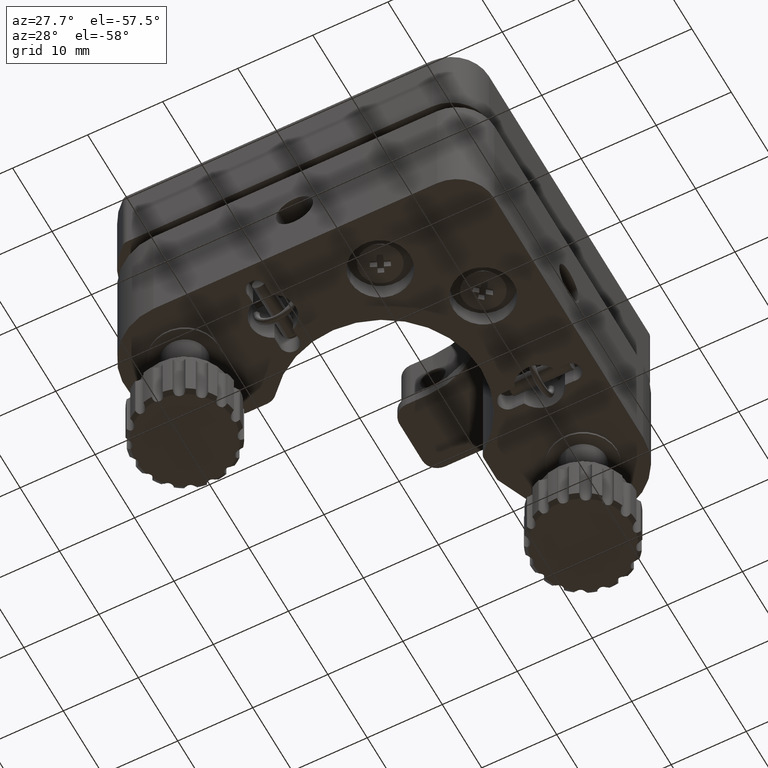
[diagram: clean part render]
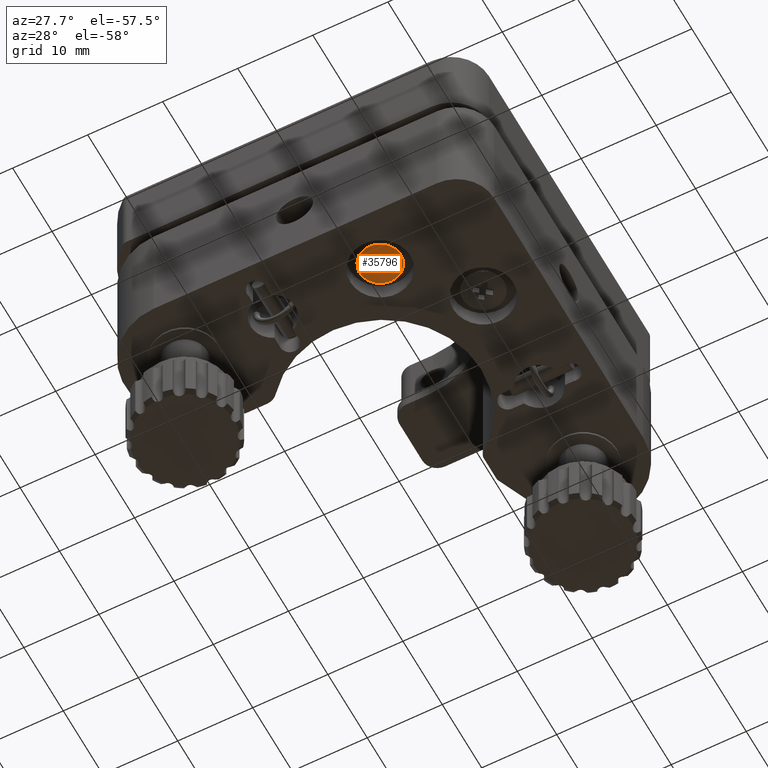
[diagram: same view with one face highlighted and labeled with its STEP entity id]
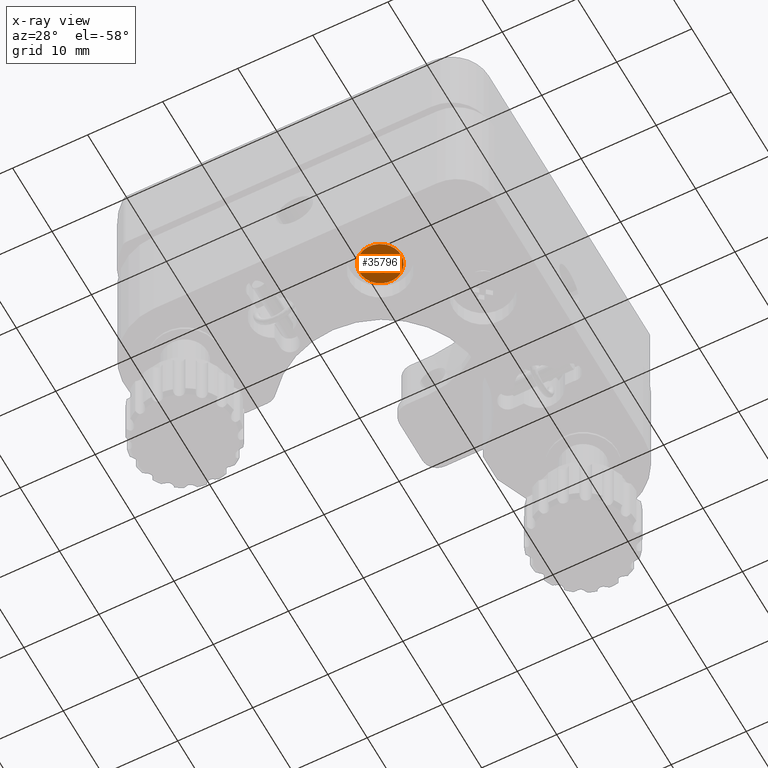
[diagram: x-ray of the same camera — body ghosted, the highlighted face saturated]
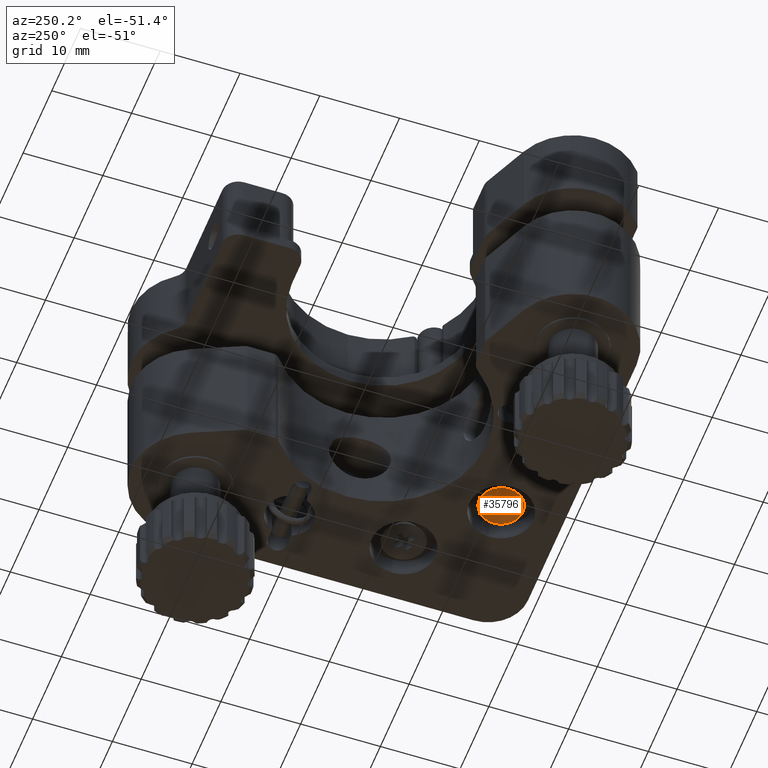
[diagram: same view with one face highlighted and labeled with its STEP entity id]
A machine part, auxiliary view. The second image highlights one B-rep face of the part: STEP entity #35796.
The next image is the same camera in x-ray: the body ghosted, the highlighted face saturated — about 0% of this face is hidden behind the body in this view.
A second angle (auxiliary view) of the same face is appended — the face is thin or edge-on in the first view.
In plain terms, the highlighted planar face has unit normal (0, -0, 1).
Its self-contained STEP definition (entity closure, byte-faithful):
#213 = ORIENTED_EDGE ( 'NONE', *, *, #33271, .F. ) ;
#486 = DIRECTION ( 'NONE',  ( 0.4088922155424708500, -0.9125826845107074500, 6.195440985631439300E-017 ) ) ;
#665 = CARTESIAN_POINT ( 'NONE',  ( 26.04785438749674500, 24.72207193769860500, 23.20054937011371300 ) ) ;
#794 = CARTESIAN_POINT ( 'NONE',  ( 26.19393658312055000, 23.41778669584323300, 23.20054937011371300 ) ) ;
#1278 = VECTOR ( 'NONE', #36260, 1000.000000000000000 ) ;
#1345 = LINE ( 'NONE', #6225, #8001 ) ;
#1957 = CARTESIAN_POINT ( 'NONE',  ( 27.17110805254194600, 24.29393503907560600, 23.20054937011371300 ) ) ;
#1973 = VERTEX_POINT ( 'NONE', #20902 ) ;
#2046 = ORIENTED_EDGE ( 'NONE', *, *, #21360, .F. ) ;
#2298 = VERTEX_POINT ( 'NONE', #6616 ) ;
#2343 = PLANE ( 'NONE',  #33539 ) ;
#3084 = VECTOR ( 'NONE', #30095, 1000.000000000000000 ) ;
#3140 = DIRECTION ( 'NONE',  ( -0.9125826845107075600, -0.4088922155424708500, -1.168020355707114700E-032 ) ) ;
#3316 = CARTESIAN_POINT ( 'NONE',  ( 27.49822182497592500, 23.56386889146703800, 23.20054937011371300 ) ) ;
#3650 = DIRECTION ( 'NONE',  ( -0.4088922155424702900, 0.9125826845107079000, 0.0000000000000000000 ) ) ;
#3797 = CARTESIAN_POINT ( 'NONE',  ( 25.99246039553325400, 22.88919673582196200, 23.20054937011371300 ) ) ;
#3998 = ORIENTED_EDGE ( 'NONE', *, *, #30980, .T. ) ;
#4042 = VERTEX_POINT ( 'NONE', #25086 ) ;
#4193 = CIRCLE ( 'NONE', #25424, 2.750000000000001800 ) ;
#4400 = ORIENTED_EDGE ( 'NONE', *, *, #25377, .F. ) ;
#5002 = VERTEX_POINT ( 'NONE', #18855 ) ;
#5023 = VERTEX_POINT ( 'NONE', #20932 ) ;
#5648 = ORIENTED_EDGE ( 'NONE', *, *, #25114, .F. ) ;
#6163 = ORIENTED_EDGE ( 'NONE', *, *, #13144, .F. ) ;
#6225 = CARTESIAN_POINT ( 'NONE',  ( 26.72252654314181800, 23.21631050825593700, 23.20054937011371300 ) ) ;
#6513 = ORIENTED_EDGE ( 'NONE', *, *, #28042, .T. ) ;
#6616 = CARTESIAN_POINT ( 'NONE',  ( 26.39541277070784600, 23.94637665586450500, 23.20054937011371300 ) ) ;
#6769 = DIRECTION ( 'NONE',  ( -5.546678239835239300E-032, 1.232595164407830900E-031, -1.000000000000000000 ) ) ;
#7058 = EDGE_CURVE ( 'NONE', #2298, #23317, #15325, .T. ) ;
#7590 = EDGE_LOOP ( 'NONE', ( #6163, #28268, #5648, #7925, #14174, #17766, #213, #31195, #2046, #4400, #13809, #30849 ) ) ;
#7925 = ORIENTED_EDGE ( 'NONE', *, *, #25477, .F. ) ;
#8001 = VECTOR ( 'NONE', #486, 1000.000000000000000 ) ;
#8154 = VERTEX_POINT ( 'NONE', #14685 ) ;
#8614 = VECTOR ( 'NONE', #3140, 999.9999999999998900 ) ;
#8644 = FACE_BOUND ( 'NONE', #7590, .T. ) ;
#9259 = CARTESIAN_POINT ( 'NONE',  ( 24.88965134126517500, 23.27170450021942800, 23.20054937011371300 ) ) ;
#9732 = LINE ( 'NONE', #29904, #31407 ) ;
#9748 = DIRECTION ( 'NONE',  ( 0.9125826845107074500, 0.4088922155424709000, 3.777720526333097900E-033 ) ) ;
#10710 = CARTESIAN_POINT ( 'NONE',  ( 25.31778823988817700, 24.39495816526462900, 23.20054937011371300 ) ) ;
#12252 = DIRECTION ( 'NONE',  ( 0.9125826845107074500, 0.4088922155424708500, 7.728962041702122200E-033 ) ) ;
#13144 = EDGE_CURVE ( 'NONE', #5023, #26673, #25449, .T. ) ;
#13178 = VERTEX_POINT ( 'NONE', #3797 ) ;
#13281 = EDGE_LOOP ( 'NONE', ( #3998, #6513 ) ) ;
#13614 = DIRECTION ( 'NONE',  ( -0.4088922155424708500, 0.9125826845107074500, -6.195440985631439300E-017 ) ) ;
#13809 = ORIENTED_EDGE ( 'NONE', *, *, #33606, .F. ) ;
#14174 = ORIENTED_EDGE ( 'NONE', *, *, #14317, .F. ) ;
#14317 = EDGE_CURVE ( 'NONE', #8154, #28067, #1345, .T. ) ;
#14685 = CARTESIAN_POINT ( 'NONE',  ( 26.72252654314181800, 23.21631050825593700, 23.20054937011371300 ) ) ;
#14901 = VERTEX_POINT ( 'NONE', #3316 ) ;
#14981 = EDGE_CURVE ( 'NONE', #26673, #5002, #19459, .T. ) ;
#15320 = FACE_OUTER_BOUND ( 'NONE', #13281, .T. ) ;
#15325 = LINE ( 'NONE', #1957, #30329 ) ;
#15682 = CARTESIAN_POINT ( 'NONE',  ( 27.17110805254194600, 24.29393503907560600, 23.20054937011371300 ) ) ;
#16601 = CARTESIAN_POINT ( 'NONE',  ( 25.99246039553325400, 22.88919673582196200, 23.20054937011371300 ) ) ;
#16888 = CARTESIAN_POINT ( 'NONE',  ( 26.19393658312055000, 23.41778669584323300, 23.20054937011371300 ) ) ;
#16921 = LINE ( 'NONE', #16601, #31906 ) ;
#17766 = ORIENTED_EDGE ( 'NONE', *, *, #22927, .F. ) ;
#17919 = VECTOR ( 'NONE', #20701, 1000.000000000000000 ) ;
#18855 = CARTESIAN_POINT ( 'NONE',  ( 25.66534662309927800, 23.61926288343053000, 23.20054937011371300 ) ) ;
#18959 = CIRCLE ( 'NONE', #29245, 2.750000000000001800 ) ;
#19459 = LINE ( 'NONE', #23555, #34411 ) ;
#19464 = DIRECTION ( 'NONE',  ( -0.4088922155424706800, 0.9125826845107075600, -6.195440985631438100E-017 ) ) ;
#19659 = CARTESIAN_POINT ( 'NONE',  ( 27.17110805254194600, 24.29393503907560600, 23.20054937011371300 ) ) ;
#19734 = DIRECTION ( 'NONE',  ( 0.4088922155424709000, -0.9125826845107074500, -1.355854680848613600E-031 ) ) ;
#20140 = CARTESIAN_POINT ( 'NONE',  ( 25.99246039553325400, 22.88919673582196200, 23.20054937011371300 ) ) ;
#20361 = CARTESIAN_POINT ( 'NONE',  ( 25.06948299037875600, 25.92738907824767800, 23.20054937011371300 ) ) ;
#20680 = DIRECTION ( 'NONE',  ( -5.546678239835239300E-032, 1.232595164407830900E-031, -1.000000000000000000 ) ) ;
#20701 = DIRECTION ( 'NONE',  ( -0.4088922155424709000, 0.9125826845107074500, -6.195440985631439300E-017 ) ) ;
#20902 = CARTESIAN_POINT ( 'NONE',  ( 26.34001877874435500, 22.11350145398785800, 23.20054937011371300 ) ) ;
#20908 = VERTEX_POINT ( 'NONE', #31347 ) ;
#20932 = CARTESIAN_POINT ( 'NONE',  ( 25.21676511369915400, 22.54163835261086000, 23.20054937011371300 ) ) ;
#21360 = EDGE_CURVE ( 'NONE', #4042, #2298, #25723, .T. ) ;
#21804 = VERTEX_POINT ( 'NONE', #20361 ) ;
#21838 = DIRECTION ( 'NONE',  ( 0.9125826845107075600, 0.4088922155424708500, 1.168020355707114700E-032 ) ) ;
#22927 = EDGE_CURVE ( 'NONE', #14901, #8154, #32081, .T. ) ;
#23050 = LINE ( 'NONE', #19659, #1278 ) ;
#23317 = VERTEX_POINT ( 'NONE', #15682 ) ;
#23538 = LINE ( 'NONE', #665, #30986 ) ;
#23555 = CARTESIAN_POINT ( 'NONE',  ( 25.66534662309927800, 23.61926288343053000, 23.20054937011371300 ) ) ;
#23627 = EDGE_CURVE ( 'NONE', #13178, #5023, #30299, .T. ) ;
#23782 = CARTESIAN_POINT ( 'NONE',  ( 26.19393658312055000, 23.41778669584323300, 23.20054937011371300 ) ) ;
#23911 = CARTESIAN_POINT ( 'NONE',  ( 27.07008492635292300, 22.44061522642183700, 23.20054937011371300 ) ) ;
#24654 = VECTOR ( 'NONE', #36427, 1000.000000000000000 ) ;
#24915 = CARTESIAN_POINT ( 'NONE',  ( 25.31778823988817700, 24.39495816526462900, 23.20054937011371300 ) ) ;
#25086 = CARTESIAN_POINT ( 'NONE',  ( 26.04785438749674500, 24.72207193769860500, 23.20054937011371300 ) ) ;
#25114 = EDGE_CURVE ( 'NONE', #1973, #13178, #16921, .T. ) ;
#25226 = VECTOR ( 'NONE', #13614, 1000.000000000000000 ) ;
#25377 = EDGE_CURVE ( 'NONE', #31265, #4042, #23538, .T. ) ;
#25424 = AXIS2_PLACEMENT_3D ( 'NONE', #794, #20680, #3650 ) ;
#25449 = LINE ( 'NONE', #9259, #17919 ) ;
#25477 = EDGE_CURVE ( 'NONE', #28067, #1973, #9732, .T. ) ;
#25723 = LINE ( 'NONE', #27152, #3084 ) ;
#26620 = DIRECTION ( 'NONE',  ( -0.4088922155424702900, 0.9125826845107079000, 0.0000000000000000000 ) ) ;
#26673 = VERTEX_POINT ( 'NONE', #27009 ) ;
#27009 = CARTESIAN_POINT ( 'NONE',  ( 24.88965134126517500, 23.27170450021942800, 23.20054937011371300 ) ) ;
#27098 = DIRECTION ( 'NONE',  ( -0.9125826845107074500, -0.4088922155424709000, -3.777720526333097900E-033 ) ) ;
#27152 = CARTESIAN_POINT ( 'NONE',  ( 26.04785438749674500, 24.72207193769860500, 23.20054937011371300 ) ) ;
#28042 = EDGE_CURVE ( 'NONE', #20908, #21804, #18959, .T. ) ;
#28067 = VERTEX_POINT ( 'NONE', #23911 ) ;
#28268 = ORIENTED_EDGE ( 'NONE', *, *, #23627, .F. ) ;
#29245 = AXIS2_PLACEMENT_3D ( 'NONE', #23782, #6769, #26620 ) ;
#29904 = CARTESIAN_POINT ( 'NONE',  ( 27.07008492635292300, 22.44061522642183700, 23.20054937011371300 ) ) ;
#30095 = DIRECTION ( 'NONE',  ( 0.4088922155424709600, -0.9125826845107074500, 6.195440985631439300E-017 ) ) ;
#30299 = LINE ( 'NONE', #20140, #8614 ) ;
#30329 = VECTOR ( 'NONE', #21838, 999.9999999999998900 ) ;
#30849 = ORIENTED_EDGE ( 'NONE', *, *, #14981, .F. ) ;
#30980 = EDGE_CURVE ( 'NONE', #21804, #20908, #4193, .T. ) ;
#30986 = VECTOR ( 'NONE', #9748, 1000.000000000000000 ) ;
#31195 = ORIENTED_EDGE ( 'NONE', *, *, #7058, .F. ) ;
#31265 = VERTEX_POINT ( 'NONE', #10710 ) ;
#31347 = CARTESIAN_POINT ( 'NONE',  ( 27.31839017586234400, 20.90818431343878800, 23.20054937011371300 ) ) ;
#31407 = VECTOR ( 'NONE', #27098, 1000.000000000000000 ) ;
#31906 = VECTOR ( 'NONE', #19464, 1000.000000000000100 ) ;
#32081 = LINE ( 'NONE', #33578, #24654 ) ;
#32648 = LINE ( 'NONE', #24915, #25226 ) ;
#33271 = EDGE_CURVE ( 'NONE', #23317, #14901, #23050, .T. ) ;
#33539 = AXIS2_PLACEMENT_3D ( 'NONE', #16888, #36584, #19734 ) ;
#33578 = CARTESIAN_POINT ( 'NONE',  ( 27.49822182497592500, 23.56386889146703800, 23.20054937011371300 ) ) ;
#33606 = EDGE_CURVE ( 'NONE', #5002, #31265, #32648, .T. ) ;
#34411 = VECTOR ( 'NONE', #12252, 1000.000000000000000 ) ;
#35796 = ADVANCED_FACE ( 'NONE', ( #8644, #15320 ), #2343, .F. ) ;
#36260 = DIRECTION ( 'NONE',  ( 0.4088922155424709000, -0.9125826845107074500, 6.195440985631439300E-017 ) ) ;
#36427 = DIRECTION ( 'NONE',  ( -0.9125826845107074500, -0.4088922155424708500, -7.728962041702122200E-033 ) ) ;
#36584 = DIRECTION ( 'NONE',  ( 5.563893916124188100E-032, -1.236437430776876900E-031, 1.000000000000000000 ) ) ;